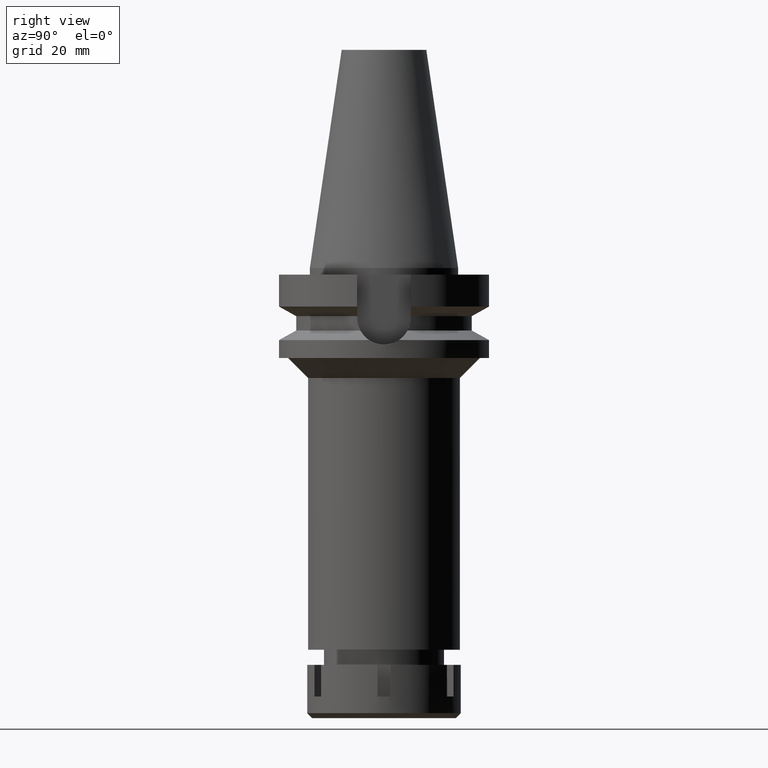
[diagram: clean part render]
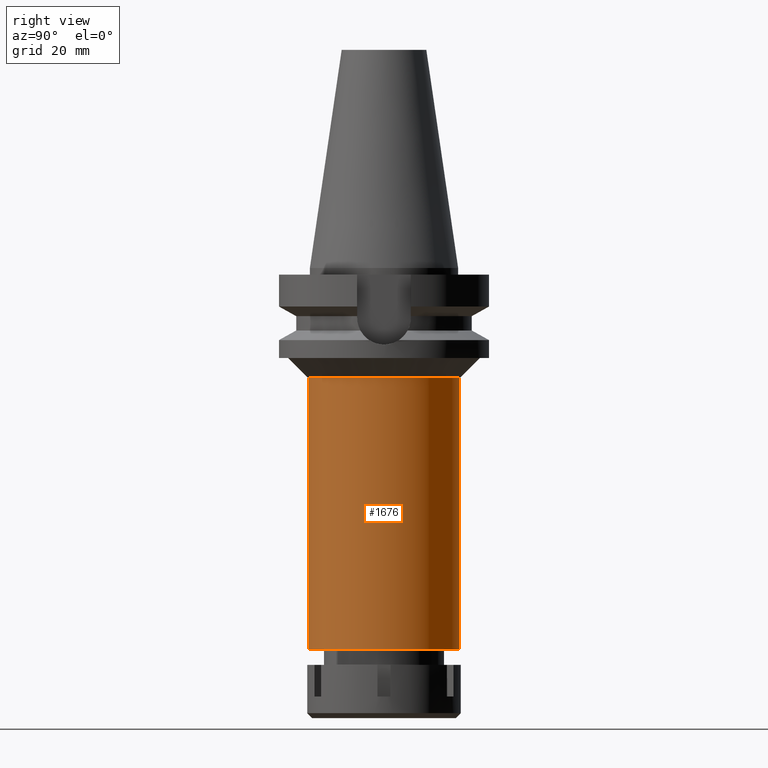
[diagram: same view with one face highlighted and labeled with its STEP entity id]
A machine part, right view. The second image highlights one B-rep face of the part: STEP entity #1676.
In plain terms, the highlighted cylindrical surface (partial cylindrical patch) has radius 22.75 mm, axis along (0, 0, -1).
Its self-contained STEP definition (entity closure, byte-faithful):
#146 = CARTESIAN_POINT ( 'NONE',  ( 0.0000000000000000000, 22.75000000000000000, -33.00000000000000000 ) ) ;
#190 = EDGE_LOOP ( 'NONE', ( #2411, #1693, #1443, #1884 ) ) ;
#297 = CARTESIAN_POINT ( 'NONE',  ( 0.0000000000000000000, -22.75000000000000000, -114.5000000000000000 ) ) ;
#374 = AXIS2_PLACEMENT_3D ( 'NONE', #1030, #2895, #2087 ) ;
#434 = DIRECTION ( 'NONE',  ( 0.0000000000000000000, 0.0000000000000000000, 1.000000000000000000 ) ) ;
#459 = VERTEX_POINT ( 'NONE', #297 ) ;
#748 = EDGE_CURVE ( 'NONE', #2479, #1593, #2660, .T. ) ;
#759 = CARTESIAN_POINT ( 'NONE',  ( 0.0000000000000000000, -22.75000000000000000, -33.00000000000000000 ) ) ;
#833 = CIRCLE ( 'NONE', #3055, 22.75000000000000000 ) ;
#836 = AXIS2_PLACEMENT_3D ( 'NONE', #1251, #434, #2989 ) ;
#1030 = CARTESIAN_POINT ( 'NONE',  ( 0.0000000000000000000, 2.143376827867999896E-14, 75.02000000000001023 ) ) ;
#1233 = EDGE_CURVE ( 'NONE', #459, #1593, #2401, .T. ) ;
#1251 = CARTESIAN_POINT ( 'NONE',  ( 0.0000000000000000000, 2.143376827867999896E-14, -114.5000000000000000 ) ) ;
#1276 = EDGE_CURVE ( 'NONE', #2479, #3263, #833, .T. ) ;
#1288 = DIRECTION ( 'NONE',  ( 0.0000000000000000000, 0.0000000000000000000, -1.000000000000000000 ) ) ;
#1296 = FACE_OUTER_BOUND ( 'NONE', #190, .T. ) ;
#1443 = ORIENTED_EDGE ( 'NONE', *, *, #1233, .T. ) ;
#1570 = LINE ( 'NONE', #759, #2696 ) ;
#1593 = VERTEX_POINT ( 'NONE', #3247 ) ;
#1676 = ADVANCED_FACE ( 'NONE', ( #1296 ), #2097, .T. ) ;
#1693 = ORIENTED_EDGE ( 'NONE', *, *, #3210, .T. ) ;
#1806 = CARTESIAN_POINT ( 'NONE',  ( 0.0000000000000000000, 0.0000000000000000000, -33.00000000000000000 ) ) ;
#1869 = DIRECTION ( 'NONE',  ( 0.0000000000000000000, 0.0000000000000000000, -1.000000000000000000 ) ) ;
#1872 = CARTESIAN_POINT ( 'NONE',  ( 0.0000000000000000000, 22.75000000000000000, -33.00000000000000000 ) ) ;
#1884 = ORIENTED_EDGE ( 'NONE', *, *, #748, .F. ) ;
#2087 = DIRECTION ( 'NONE',  ( 0.0000000000000000000, -1.000000000000000000, 0.0000000000000000000 ) ) ;
#2097 = CYLINDRICAL_SURFACE ( 'NONE', #374, 22.75000000000000000 ) ;
#2363 = DIRECTION ( 'NONE',  ( 0.0000000000000000000, 0.0000000000000000000, -1.000000000000000000 ) ) ;
#2401 = CIRCLE ( 'NONE', #836, 22.75000000000000000 ) ;
#2411 = ORIENTED_EDGE ( 'NONE', *, *, #1276, .T. ) ;
#2479 = VERTEX_POINT ( 'NONE', #1872 ) ;
#2660 = LINE ( 'NONE', #146, #3110 ) ;
#2696 = VECTOR ( 'NONE', #1869, 1000.000000000000000 ) ;
#2814 = CARTESIAN_POINT ( 'NONE',  ( 0.0000000000000000000, -22.75000000000000000, -33.00000000000000000 ) ) ;
#2895 = DIRECTION ( 'NONE',  ( 0.0000000000000000000, 0.0000000000000000000, -1.000000000000000000 ) ) ;
#2989 = DIRECTION ( 'NONE',  ( 0.0000000000000000000, -1.000000000000000000, 0.0000000000000000000 ) ) ;
#3055 = AXIS2_PLACEMENT_3D ( 'NONE', #1806, #2363, #3492 ) ;
#3110 = VECTOR ( 'NONE', #1288, 1000.000000000000000 ) ;
#3210 = EDGE_CURVE ( 'NONE', #3263, #459, #1570, .T. ) ;
#3247 = CARTESIAN_POINT ( 'NONE',  ( 0.0000000000000000000, 22.75000000000000000, -114.5000000000000000 ) ) ;
#3263 = VERTEX_POINT ( 'NONE', #2814 ) ;
#3492 = DIRECTION ( 'NONE',  ( 0.0000000000000000000, 1.000000000000000000, 0.0000000000000000000 ) ) ;